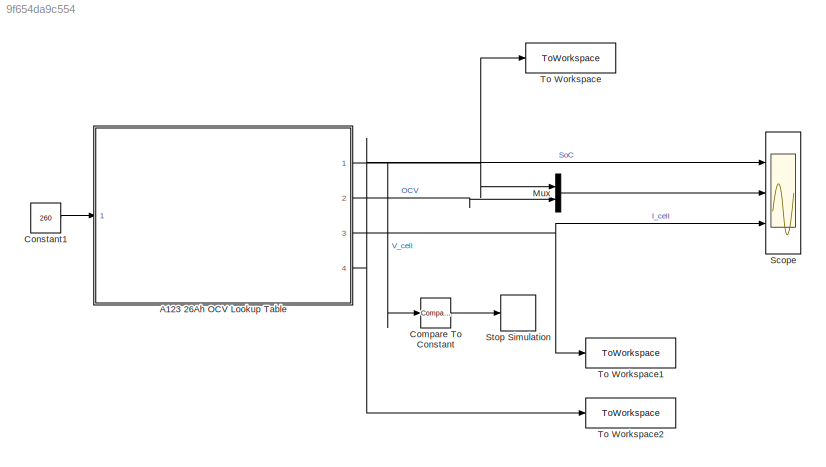
MODEL slx_9f654da9c554
KIND model
CONFIG AbsTol = auto
CONFIG EnableMultiTasking = off
CONFIG FixedStep = auto
CONFIG MaxStep = auto
CONFIG MinStep = auto
CONFIG RelTol = 1e-3
CONFIG SampleTimeConstraint = Unconstrained
CONFIG SolverName = VariableStepAuto
CONFIG StartTime = 0.0
CONFIG StopTime = 360
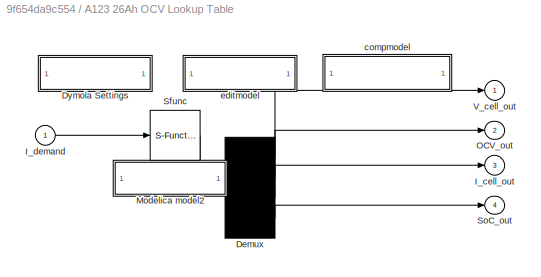
BLOCK [SubSystem] A123 26Ah OCV Lookup Table
  CopyFcn = newDymolaGui('11-Aug-2022 00:13:00#9058','Copy');
  DeleteFcn = if exist('newDymolaGui') newDymolaGui('Sfunctiontest_20220810/A123 26Ah OCV Lookup Table','Delete'); end;
  NameChangeFcn = newDymolaGui('11-Aug-2022 00:13:00#9058','Copy');
  OpenFcn = newDymolaGui('Sfunctiontest_20220810/A123 26Ah OCV Lookup Table','Init');
  Ports = [1, 4]
  RequestExecContextInheritance = off
  Tag = 11-Aug-2022 00:13:00#9058
  UserDataPersistent = on
BLOCK [Demux] A123 26Ah OCV Lookup Table/Demux
  Outputs = [1;1;1;1]
  Ports = [1, 4]
BLOCK [SubSystem] A123 26Ah OCV Lookup Table/Dymola Settings
  Ports = []
  RequestExecContextInheritance = off
BLOCK [Outport] A123 26Ah OCV Lookup Table/I_cell_out
  Port = 3
BLOCK [Inport] A123 26Ah OCV Lookup Table/I_demand
BLOCK [SubSystem] A123 26Ah OCV Lookup Table/Modelica model2
  Ports = []
  RequestExecContextInheritance = off
BLOCK [Outport] A123 26Ah OCV Lookup Table/OCV_out
  Port = 2
BLOCK [S-Function] A123 26Ah OCV Lookup Table/Sfunc
  EnableBusSupport = off
  FunctionName = cu_irp_perrinn__dy9058dqglo
  Parameters = [R0_R;R1_R;C2_C;C2_IC;C2_UIC;R2_R;C1_C;C1_IC;C1_UIC;DoD_OCV_verboseRead;columb_Counting_integrato11;columb_Counting_integrato12;columb_Counting_add_k1;columb_Counting_add_k2;columb_Counting_const_k;columb_Counting_gain_k;Ah_design_k],[C2_vinternal;C1_vinternal;columb_Counting_integrato20]
  PortCounts = [1;1]
  Ports = [1, 1]
  SFcnIsStateOwnerBlock = off
  SFunctionDeploymentMode = off
  Tag = 9058dqglo
BLOCK [Outport] A123 26Ah OCV Lookup Table/SoC_out
  Port = 4
BLOCK [Outport] A123 26Ah OCV Lookup Table/V_cell_out
BLOCK [SubSystem] A123 26Ah OCV Lookup Table/compmodel
  InitFcn = newDymolaGui('Sfunctiontest_20220810/A123 26Ah OCV Lookup Table','Verify');
  OpenFcn = compileModelica('Sfunctiontest_20220810/A123 26Ah OCV Lookup Table');
  Ports = []
  RequestExecContextInheritance = off
BLOCK [SubSystem] A123 26Ah OCV Lookup Table/editmodel
  OpenFcn = editModelica('Sfunctiontest_20220810/A123 26Ah OCV Lookup Table');
  Ports = []
  RequestExecContextInheritance = off
BLOCK [Reference] Compare To Constant  REF=simulink/Logic and Bit
Operations/Compare
To Constant
  Ports = [1, 1]
  SourceBlock = simulink/Logic and Bit\nOperations/Compare\nTo Constant
  SourceProductBaseCode = SL
  SourceType = Compare To Constant
BLOCK [Constant] Constant1
  Value = 260
BLOCK [Mux] Mux
  DisplayOption = bar
  Inputs = 2
  Ports = [2, 1]
BLOCK [Scope] Scope
  Floating = off
  NumInputPorts = 3
  Ports = [3]
  ScopeSpecificationString = Simulink.scopes.TimeScopeBlockCfg('CurrentConfiguration', extmgr.ConfigurationSet(extmgr.Configuration('Core','General UI',true),extmgr.Configuration('Core','Source UI',true),extmgr.Configuration('Sources','WiredSimulink',true),extmgr.Configuration('Visuals','Time Domain',true,'SerializedDisplays',{struct('MinYLimReal','-0.125','MaxYLimReal','1.125','YLabelReal','','MinYLimMag','0.00000','MaxYLimM...<+2767ch>
BLOCK [Stop] Stop Simulation
BLOCK [ToWorkspace] To Workspace
  FixptAsFi = on
  MaxDataPoints = inf
  Ports = [1]
  SampleTime = -1
  VariableName = V_cell
BLOCK [ToWorkspace] To Workspace1
  FixptAsFi = on
  MaxDataPoints = inf
  Ports = [1]
  SampleTime = -1
  VariableName = I_cell
BLOCK [ToWorkspace] To Workspace2
  FixptAsFi = on
  MaxDataPoints = inf
  Ports = [1]
  SampleTime = -1
  VariableName = SoC
LINE A123 26Ah OCV Lookup Table/Demux:1 -> A123 26Ah OCV Lookup Table/V_cell_out:1
LINE A123 26Ah OCV Lookup Table/Demux:2 -> A123 26Ah OCV Lookup Table/OCV_out:1
LINE A123 26Ah OCV Lookup Table/Demux:3 -> A123 26Ah OCV Lookup Table/I_cell_out:1
LINE A123 26Ah OCV Lookup Table/Demux:4 -> A123 26Ah OCV Lookup Table/SoC_out:1
LINE A123 26Ah OCV Lookup Table/I_demand:1 -> A123 26Ah OCV Lookup Table/Sfunc:1
LINE A123 26Ah OCV Lookup Table/Sfunc:1 -> A123 26Ah OCV Lookup Table/Demux:1
NET A123 26Ah OCV Lookup Table:1 -> Compare To Constant:1, Mux:1, To Workspace:1
LINE A123 26Ah OCV Lookup Table:2 -> Mux:2
NET A123 26Ah OCV Lookup Table:3 -> Scope:3, To Workspace1:1
NET A123 26Ah OCV Lookup Table:4 -> Scope:1, To Workspace2:1
LINE Compare To Constant:1 -> Stop Simulation:1
LINE Constant1:1 -> A123 26Ah OCV Lookup Table:1
LINE Mux:1 -> Scope:2
note: NET lines group one-source signal fan-out (src -> all destinations, sorted); 1:1 wires keep LINE
